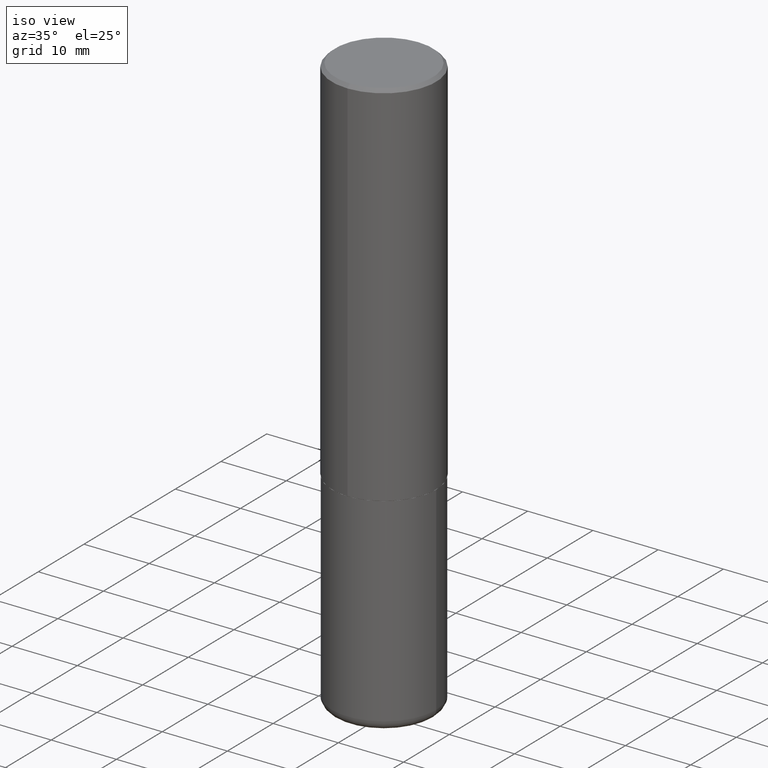
[diagram: clean part render]
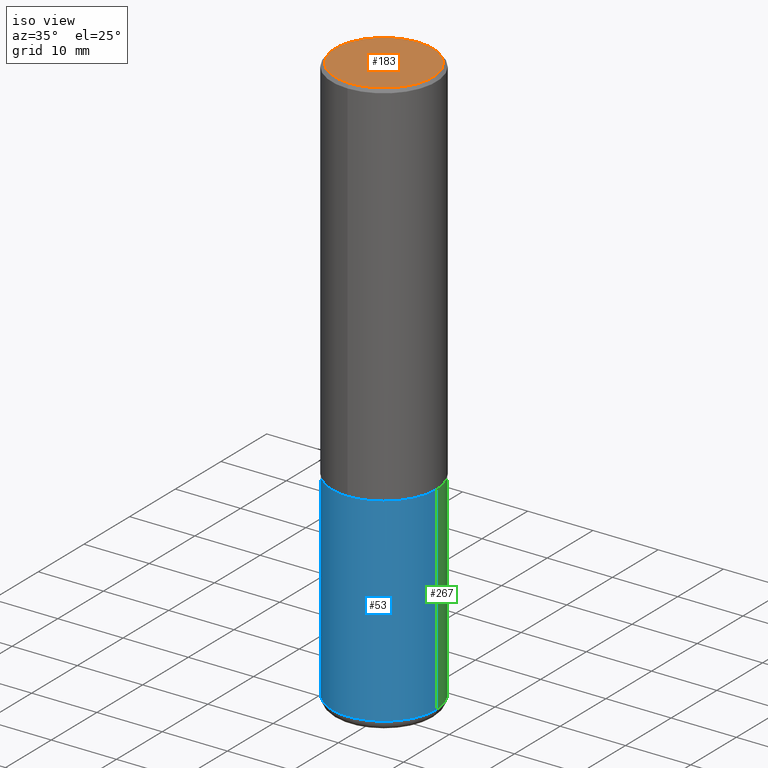
[diagram: same view with three faces highlighted in distinct colors, each labeled with its STEP entity id]
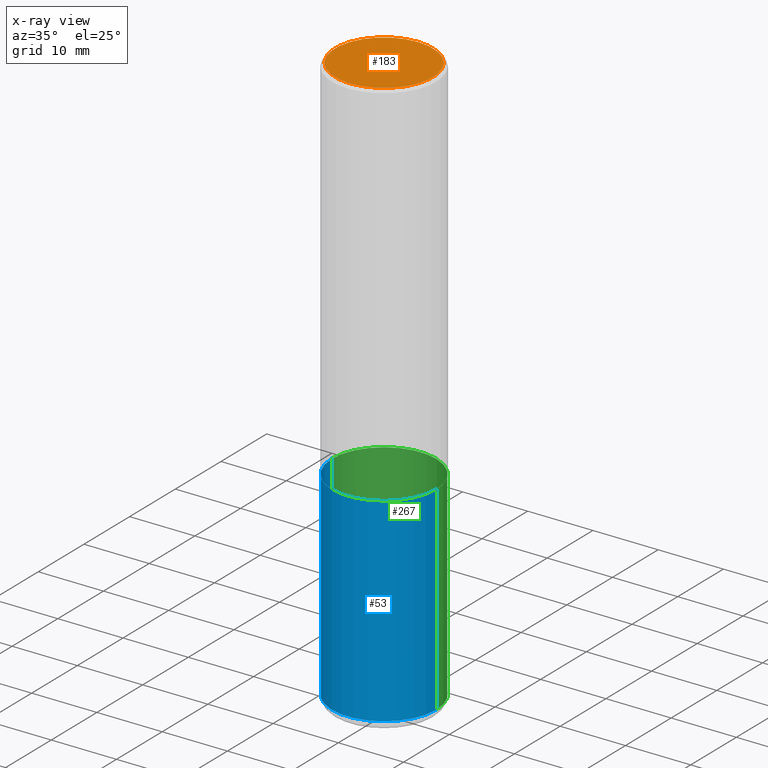
[diagram: x-ray of the same camera — body ghosted, the three highlighted faces saturated]
A machine part, iso view with three faces highlighted in distinct colors.
The next image is the same camera in x-ray (body ghosted, the three faces saturated) — at least one of them is partly hidden behind the body in this view.
Their STEP definitions:

[orange] entity #183 — the highlighted planar face has unit normal (0, -0, -1).
#3 = AXIS2_PLACEMENT_3D ( 'NONE', #126, #71, #225 ) ;
#10 = EDGE_CURVE ( 'NONE', #410, #115, #259, .T. ) ;
#35 = DIRECTION ( 'NONE',  ( 2.446102043983074868E-29, -3.490574506274840456E-15, -1.000000000000000000 ) ) ;
#64 = DIRECTION ( 'NONE',  ( -6.982962677686265922E-15, -1.000000000000000000, 3.490574506274840456E-15 ) ) ;
#71 = DIRECTION ( 'NONE',  ( -2.446102043983075148E-29, 3.490574506274840456E-15, 1.000000000000000000 ) ) ;
#78 = AXIS2_PLACEMENT_3D ( 'NONE', #95, #35, #161 ) ;
#86 = ORIENTED_EDGE ( 'NONE', *, *, #10, .T. ) ;
#95 = CARTESIAN_POINT ( 'NONE',  ( 2.059624841783561302E-15, 0.2949499999999996014, -8.909520298305101196E-16 ) ) ;
#115 = VERTEX_POINT ( 'NONE', #187 ) ;
#118 = CARTESIAN_POINT ( 'NONE',  ( -6.780248536777034301E-45, 9.675378321561535985E-31, 2.771858415905051370E-16 ) ) ;
#126 = CARTESIAN_POINT ( 'NONE',  ( -6.780248536777034301E-45, 9.675378321561535985E-31, 2.771858415905051370E-16 ) ) ;
#128 = FACE_OUTER_BOUND ( 'NONE', #255, .T. ) ;
#161 = DIRECTION ( 'NONE',  ( 6.982962677686265922E-15, 1.000000000000000000, -3.490574506274840456E-15 ) ) ;
#183 = ADVANCED_FACE ( 'NONE', ( #128 ), #286, .F. ) ;
#187 = CARTESIAN_POINT ( 'NONE',  ( -2.092108864420426059E-15, -0.2949499999999996014, 1.306730792216267924E-15 ) ) ;
#189 = DIRECTION ( 'NONE',  ( -2.446102043983075148E-29, 3.490574506274840456E-15, 1.000000000000000000 ) ) ;
#216 = CIRCLE ( 'NONE', #3, 0.2949499999999996014 ) ;
#220 = EDGE_CURVE ( 'NONE', #115, #410, #216, .T. ) ;
#225 = DIRECTION ( 'NONE',  ( -6.982962677686265922E-15, -1.000000000000000000, 3.490574506274840456E-15 ) ) ;
#255 = EDGE_LOOP ( 'NONE', ( #86, #367 ) ) ;
#259 = CIRCLE ( 'NONE', #393, 0.2949499999999996014 ) ;
#263 = CARTESIAN_POINT ( 'NONE',  ( 2.129454468560424995E-15, 0.2949499999999996014, -7.523591090352575511E-16 ) ) ;
#286 = PLANE ( 'NONE',  #78 ) ;
#367 = ORIENTED_EDGE ( 'NONE', *, *, #220, .T. ) ;
#393 = AXIS2_PLACEMENT_3D ( 'NONE', #118, #189, #64 ) ;
#410 = VERTEX_POINT ( 'NONE', #263 ) ;

[blue] entity #53 — the highlighted cylindrical surface (partial cylindrical patch) has radius 7.9997 mm, axis along (-0, 0, 1).
#20 = ORIENTED_EDGE ( 'NONE', *, *, #402, .F. ) ;
#21 = CARTESIAN_POINT ( 'NONE',  ( 0.3149500000000000077, -1.003451736783519063E-14, -2.244099999999999540 ) ) ;
#28 = CARTESIAN_POINT ( 'NONE',  ( 5.487876547960064752E-29, -7.835233272497900762E-15, -2.244099999999999540 ) ) ;
#34 = DIRECTION ( 'NONE',  ( 1.000000000000000000, -6.982962677686266711E-15, 4.876176775795936353E-29 ) ) ;
#36 = CARTESIAN_POINT ( 'NONE',  ( 0.000000000000000000, 0.000000000000000000, 0.000000000000000000 ) ) ;
#41 = LINE ( 'NONE', #166, #348 ) ;
#45 = AXIS2_PLACEMENT_3D ( 'NONE', #28, #353, #352 ) ;
#53 = ADVANCED_FACE ( 'NONE', ( #285 ), #69, .T. ) ;
#69 = CYLINDRICAL_SURFACE ( 'NONE', #248, 0.3149500000000000077 ) ;
#85 = AXIS2_PLACEMENT_3D ( 'NONE', #91, #409, #214 ) ;
#91 = CARTESIAN_POINT ( 'NONE',  ( 8.424150943546558141E-29, -1.202745491604686588E-14, -3.444799999999999862 ) ) ;
#100 = CARTESIAN_POINT ( 'NONE',  ( -0.3149500000000000077, 2.237854346276435590E-15, -1.549218606675782676E-29 ) ) ;
#148 = CIRCLE ( 'NONE', #85, 0.3149500000000000077 ) ;
#149 = VERTEX_POINT ( 'NONE', #21 ) ;
#166 = CARTESIAN_POINT ( 'NONE',  ( 0.3149500000000000077, -2.199284095337289871E-15, 1.535751875536930130E-29 ) ) ;
#173 = EDGE_CURVE ( 'NONE', #306, #362, #148, .T. ) ;
#196 = EDGE_CURVE ( 'NONE', #212, #149, #223, .T. ) ;
#211 = ORIENTED_EDGE ( 'NONE', *, *, #398, .T. ) ;
#212 = VERTEX_POINT ( 'NONE', #350 ) ;
#214 = DIRECTION ( 'NONE',  ( 1.000000000000000000, -6.982962677686263555E-15, 0.000000000000000000 ) ) ;
#223 = CIRCLE ( 'NONE', #45, 0.3149500000000000077 ) ;
#231 = DIRECTION ( 'NONE',  ( -2.445468806185136877E-29, 3.491481338843145188E-15, 1.000000000000000000 ) ) ;
#235 = DIRECTION ( 'NONE',  ( -2.445468806185136877E-29, 3.491481338843145188E-15, 1.000000000000000000 ) ) ;
#241 = ORIENTED_EDGE ( 'NONE', *, *, #173, .T. ) ;
#248 = AXIS2_PLACEMENT_3D ( 'NONE', #36, #411, #34 ) ;
#260 = VECTOR ( 'NONE', #231, 39.37007874015748143 ) ;
#285 = FACE_OUTER_BOUND ( 'NONE', #341, .T. ) ;
#306 = VERTEX_POINT ( 'NONE', #382 ) ;
#341 = EDGE_LOOP ( 'NONE', ( #20, #241, #211, #399 ) ) ;
#348 = VECTOR ( 'NONE', #235, 39.37007874015748143 ) ;
#350 = CARTESIAN_POINT ( 'NONE',  ( -0.3149500000000000077, -7.693489747995948915E-15, -2.244099999999999540 ) ) ;
#352 = DIRECTION ( 'NONE',  ( 1.000000000000000000, -6.982962677686266711E-15, 0.000000000000000000 ) ) ;
#353 = DIRECTION ( 'NONE',  ( -2.445468806185136597E-29, 3.491481338843145583E-15, 1.000000000000000000 ) ) ;
#362 = VERTEX_POINT ( 'NONE', #376 ) ;
#376 = CARTESIAN_POINT ( 'NONE',  ( 0.3149500000000000077, -1.422673901138415575E-14, -3.444799999999999862 ) ) ;
#382 = CARTESIAN_POINT ( 'NONE',  ( -0.3149500000000000077, -9.789600569770431475E-15, -3.444799999999999862 ) ) ;
#396 = LINE ( 'NONE', #100, #260 ) ;
#398 = EDGE_CURVE ( 'NONE', #362, #149, #41, .T. ) ;
#399 = ORIENTED_EDGE ( 'NONE', *, *, #196, .F. ) ;
#402 = EDGE_CURVE ( 'NONE', #306, #212, #396, .T. ) ;
#409 = DIRECTION ( 'NONE',  ( -2.445468806185136597E-29, 3.491481338843145583E-15, 1.000000000000000000 ) ) ;
#411 = DIRECTION ( 'NONE',  ( -2.445468806185136597E-29, 3.491481338843145583E-15, 1.000000000000000000 ) ) ;

[green] entity #267 — the highlighted cylindrical surface (partial cylindrical patch) has radius 7.9997 mm, axis along (-0, 0, 1).
#15 = EDGE_LOOP ( 'NONE', ( #373, #127, #90, #88 ) ) ;
#21 = CARTESIAN_POINT ( 'NONE',  ( 0.3149500000000000077, -1.003451736783519063E-14, -2.244099999999999540 ) ) ;
#37 = CARTESIAN_POINT ( 'NONE',  ( 0.000000000000000000, 0.000000000000000000, 0.000000000000000000 ) ) ;
#41 = LINE ( 'NONE', #166, #348 ) ;
#42 = EDGE_CURVE ( 'NONE', #362, #306, #379, .T. ) ;
#48 = CIRCLE ( 'NONE', #333, 0.3149500000000000077 ) ;
#67 = DIRECTION ( 'NONE',  ( 1.000000000000000000, -6.982962677686266711E-15, 0.000000000000000000 ) ) ;
#75 = AXIS2_PLACEMENT_3D ( 'NONE', #37, #163, #347 ) ;
#88 = ORIENTED_EDGE ( 'NONE', *, *, #398, .F. ) ;
#90 = ORIENTED_EDGE ( 'NONE', *, *, #97, .F. ) ;
#96 = CYLINDRICAL_SURFACE ( 'NONE', #75, 0.3149500000000000077 ) ;
#97 = EDGE_CURVE ( 'NONE', #149, #212, #48, .T. ) ;
#100 = CARTESIAN_POINT ( 'NONE',  ( -0.3149500000000000077, 2.237854346276435590E-15, -1.549218606675782676E-29 ) ) ;
#127 = ORIENTED_EDGE ( 'NONE', *, *, #402, .T. ) ;
#149 = VERTEX_POINT ( 'NONE', #21 ) ;
#163 = DIRECTION ( 'NONE',  ( -2.445468806185136597E-29, 3.491481338843145583E-15, 1.000000000000000000 ) ) ;
#166 = CARTESIAN_POINT ( 'NONE',  ( 0.3149500000000000077, -2.199284095337289871E-15, 1.535751875536930130E-29 ) ) ;
#184 = DIRECTION ( 'NONE',  ( 1.000000000000000000, -6.982962677686263555E-15, 0.000000000000000000 ) ) ;
#202 = AXIS2_PLACEMENT_3D ( 'NONE', #349, #371, #184 ) ;
#212 = VERTEX_POINT ( 'NONE', #350 ) ;
#231 = DIRECTION ( 'NONE',  ( -2.445468806185136877E-29, 3.491481338843145188E-15, 1.000000000000000000 ) ) ;
#235 = DIRECTION ( 'NONE',  ( -2.445468806185136877E-29, 3.491481338843145188E-15, 1.000000000000000000 ) ) ;
#260 = VECTOR ( 'NONE', #231, 39.37007874015748143 ) ;
#267 = ADVANCED_FACE ( 'NONE', ( #319 ), #96, .T. ) ;
#306 = VERTEX_POINT ( 'NONE', #382 ) ;
#319 = FACE_OUTER_BOUND ( 'NONE', #15, .T. ) ;
#333 = AXIS2_PLACEMENT_3D ( 'NONE', #345, #416, #67 ) ;
#345 = CARTESIAN_POINT ( 'NONE',  ( 5.487876547960064752E-29, -7.835233272497900762E-15, -2.244099999999999540 ) ) ;
#347 = DIRECTION ( 'NONE',  ( 1.000000000000000000, -6.982962677686266711E-15, 4.876176775795936353E-29 ) ) ;
#348 = VECTOR ( 'NONE', #235, 39.37007874015748143 ) ;
#349 = CARTESIAN_POINT ( 'NONE',  ( 8.424150943546558141E-29, -1.202745491604686588E-14, -3.444799999999999862 ) ) ;
#350 = CARTESIAN_POINT ( 'NONE',  ( -0.3149500000000000077, -7.693489747995948915E-15, -2.244099999999999540 ) ) ;
#362 = VERTEX_POINT ( 'NONE', #376 ) ;
#371 = DIRECTION ( 'NONE',  ( -2.445468806185136597E-29, 3.491481338843145583E-15, 1.000000000000000000 ) ) ;
#373 = ORIENTED_EDGE ( 'NONE', *, *, #42, .T. ) ;
#376 = CARTESIAN_POINT ( 'NONE',  ( 0.3149500000000000077, -1.422673901138415575E-14, -3.444799999999999862 ) ) ;
#379 = CIRCLE ( 'NONE', #202, 0.3149500000000000077 ) ;
#382 = CARTESIAN_POINT ( 'NONE',  ( -0.3149500000000000077, -9.789600569770431475E-15, -3.444799999999999862 ) ) ;
#396 = LINE ( 'NONE', #100, #260 ) ;
#398 = EDGE_CURVE ( 'NONE', #362, #149, #41, .T. ) ;
#402 = EDGE_CURVE ( 'NONE', #306, #212, #396, .T. ) ;
#416 = DIRECTION ( 'NONE',  ( -2.445468806185136597E-29, 3.491481338843145583E-15, 1.000000000000000000 ) ) ;